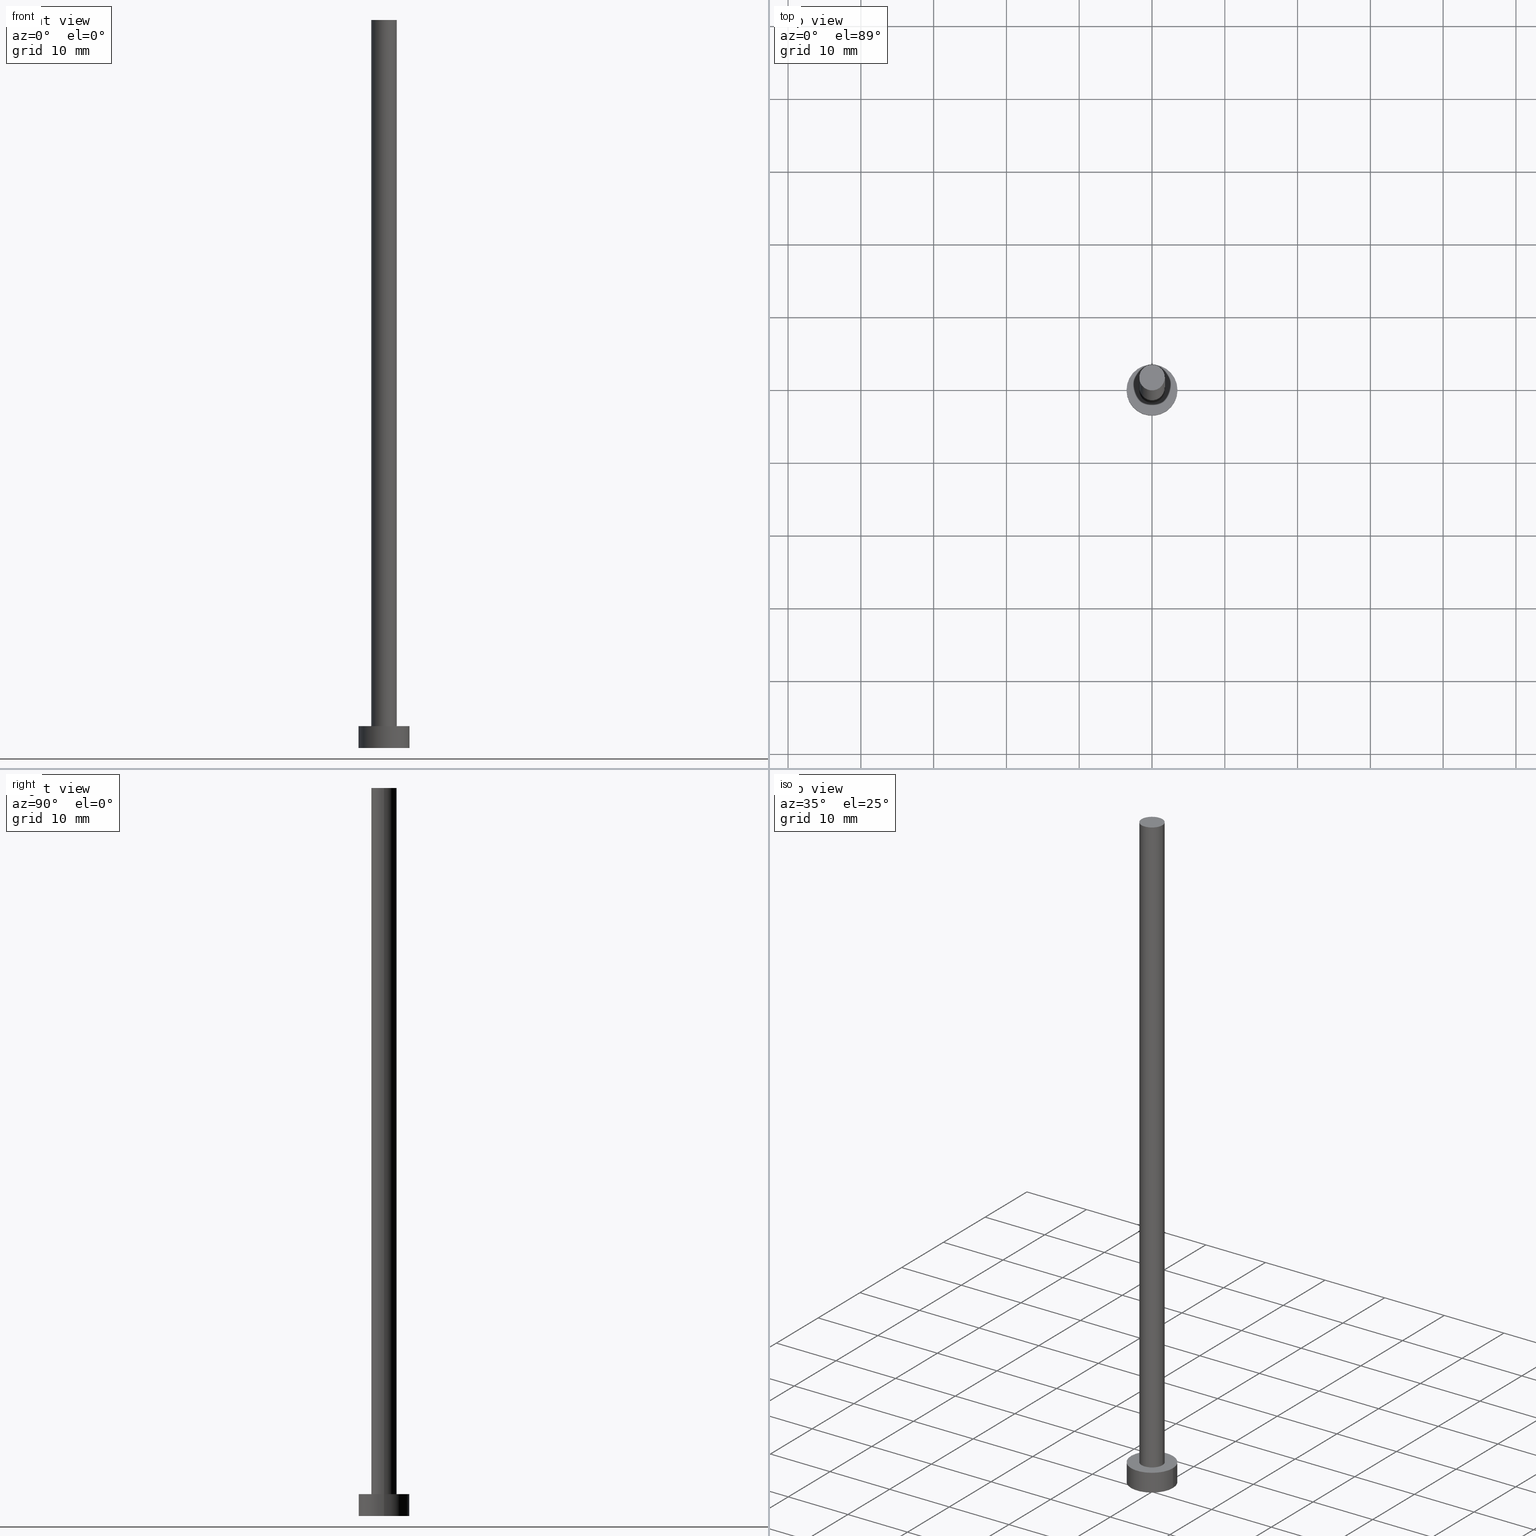
[diagram: canonical four-view strip — front | top / right | iso, engineering-drawing reading convention]
A machine part, canonical four-view strip (front | top / right | iso — engineering-drawing reading convention). The complete STEP part file that produces these views, byte-faithful:
ISO-10303-21;
HEADER;
FILE_DESCRIPTION (( 'STEP AP203' ),
    '1' );
FILE_NAME ('755e.STEP',
    '2023-02-13T15:35:10',
    ( '' ),
    ( '' ),
    'SwSTEP 2.0',
    'SolidWorks 2019',
    '' );
FILE_SCHEMA (( 'CONFIG_CONTROL_DESIGN' ));
ENDSEC;

DATA;
#1 = ORIENTED_EDGE ( 'NONE', *, *, #54, .F. ) ;
#2 = AXIS2_PLACEMENT_3D ( 'NONE', #250, #79, #24 ) ;
#3 = FACE_BOUND ( 'NONE', #95, .T. ) ;
#4 = PLANE ( 'NONE',  #22 ) ;
#5 = CARTESIAN_POINT ( 'NONE',  ( 0.000000000000000000, 0.000000000000000000, 3.000000000000000000 ) ) ;
#6 = CIRCLE ( 'NONE', #126, 3.500000000000000444 ) ;
#7 = CC_DESIGN_APPROVAL ( #165, ( #131 ) ) ;
#8 = DIRECTION ( 'NONE',  ( 1.000000000000000000, 0.000000000000000000, 0.000000000000000000 ) ) ;
#9 = PERSON_AND_ORGANIZATION_ROLE ( 'creator' ) ;
#10 = DIRECTION ( 'NONE',  ( -1.000000000000000000, 0.000000000000000000, 0.000000000000000000 ) ) ;
#11 = EDGE_CURVE ( 'NONE', #30, #169, #98, .T. ) ;
#12 = COORDINATED_UNIVERSAL_TIME_OFFSET ( 1, 0, .AHEAD. ) ;
#13 = DIRECTION ( 'NONE',  ( -0.000000000000000000, -0.000000000000000000, -1.000000000000000000 ) ) ;
#14 = PERSON_AND_ORGANIZATION_ROLE ( 'design_supplier' ) ;
#15 = CYLINDRICAL_SURFACE ( 'NONE', #127, 3.500000000000000444 ) ;
#16 = EDGE_LOOP ( 'NONE', ( #94, #136, #194, #80 ) ) ;
#17 = PERSON_AND_ORGANIZATION ( #156, #177 ) ;
#18 = AXIS2_PLACEMENT_3D ( 'NONE', #187, #195, #186 ) ;
#19 = CALENDAR_DATE ( 2023, 13, 2 ) ;
#20 = CARTESIAN_POINT ( 'NONE',  ( 0.000000000000000000, 0.000000000000000000, 0.000000000000000000 ) ) ;
#21 = EDGE_CURVE ( 'NONE', #230, #169, #223, .T. ) ;
#22 = AXIS2_PLACEMENT_3D ( 'NONE', #86, #43, #119 ) ;
#23 = ORIENTED_EDGE ( 'NONE', *, *, #11, .T. ) ;
#24 = DIRECTION ( 'NONE',  ( -1.000000000000000000, 0.000000000000000000, 0.000000000000000000 ) ) ;
#25 = CIRCLE ( 'NONE', #97, 3.500000000000000444 ) ;
#26 = APPROVAL_PERSON_ORGANIZATION ( #171, #233, #205 ) ;
#27 = DIRECTION ( 'NONE',  ( 0.000000000000000000, 0.000000000000000000, 1.000000000000000000 ) ) ;
#28 = CARTESIAN_POINT ( 'NONE',  ( -3.500000000000000444, 0.000000000000000000, 3.000000000000000000 ) ) ;
#29 = CC_DESIGN_PERSON_AND_ORGANIZATION_ASSIGNMENT ( #32, #14, ( #131 ) ) ;
#30 = VERTEX_POINT ( 'NONE', #137 ) ;
#31 = AXIS2_PLACEMENT_3D ( 'NONE', #172, #243, #38 ) ;
#32 = PERSON_AND_ORGANIZATION ( #156, #177 ) ;
#33 =( NAMED_UNIT ( * ) SI_UNIT ( $, .STERADIAN. ) SOLID_ANGLE_UNIT ( ) );
#34 = AXIS2_PLACEMENT_3D ( 'NONE', #112, #113, #234 ) ;
#35 = CC_DESIGN_PERSON_AND_ORGANIZATION_ASSIGNMENT ( #189, #9, ( #131 ) ) ;
#36 = DIRECTION ( 'NONE',  ( -0.000000000000000000, -0.000000000000000000, -1.000000000000000000 ) ) ;
#37 = AXIS2_PLACEMENT_3D ( 'NONE', #237, #240, #188 ) ;
#38 = DIRECTION ( 'NONE',  ( 1.000000000000000000, 0.000000000000000000, 0.000000000000000000 ) ) ;
#39 = PLANE ( 'NONE',  #34 ) ;
#40 = AXIS2_PLACEMENT_3D ( 'NONE', #235, #65, #140 ) ;
#41 = CARTESIAN_POINT ( 'NONE',  ( 0.000000000000000000, 0.000000000000000000, 3.000000000000000000 ) ) ;
#42 = DIRECTION ( 'NONE',  ( 1.000000000000000000, 0.000000000000000000, 0.000000000000000000 ) ) ;
#43 = DIRECTION ( 'NONE',  ( 0.000000000000000000, 0.000000000000000000, 1.000000000000000000 ) ) ;
#44 = CARTESIAN_POINT ( 'NONE',  ( 3.500000000000000444, 4.286263797015737088E-16, 3.000000000000000000 ) ) ;
#45 = ORIENTED_EDGE ( 'NONE', *, *, #133, .F. ) ;
#46 = CARTESIAN_POINT ( 'NONE',  ( -1.750000000000000000, 0.000000000000000000, 3.000000000000000000 ) ) ;
#47 = VECTOR ( 'NONE', #166, 1000.000000000000000 ) ;
#48 = COORDINATED_UNIVERSAL_TIME_OFFSET ( 1, 0, .AHEAD. ) ;
#49 = ADVANCED_FACE ( 'NONE', ( #216 ), #220, .T. ) ;
#50 = CC_DESIGN_APPROVAL ( #233, ( #251 ) ) ;
#51 = CARTESIAN_POINT ( 'NONE',  ( 1.750000000000000000, 2.143131898507867804E-16, 3.000000000000000000 ) ) ;
#52 = APPROVAL_STATUS ( 'not_yet_approved' ) ;
#53 = EDGE_LOOP ( 'NONE', ( #102, #182, #23, #75 ) ) ;
#54 = EDGE_CURVE ( 'NONE', #118, #121, #6, .T. ) ;
#55 = CIRCLE ( 'NONE', #82, 3.500000000000000444 ) ;
#56 = LINE ( 'NONE', #116, #153 ) ;
#57 = CALENDAR_DATE ( 2023, 13, 2 ) ;
#58 = ORIENTED_EDGE ( 'NONE', *, *, #133, .T. ) ;
#59 = ORIENTED_EDGE ( 'NONE', *, *, #198, .F. ) ;
#60 = APPLICATION_PROTOCOL_DEFINITION ( 'international standard', 'config_control_design', 1994, #252 ) ;
#61 = APPROVAL_PERSON_ORGANIZATION ( #111, #207, #249 ) ;
#62 = DIRECTION ( 'NONE',  ( 0.000000000000000000, 0.000000000000000000, 1.000000000000000000 ) ) ;
#63 = LOCAL_TIME ( 16, 35, 10.00000000000000000, #12 ) ;
#64 = CC_DESIGN_PERSON_AND_ORGANIZATION_ASSIGNMENT ( #158, #210, ( #88 ) ) ;
#65 = DIRECTION ( 'NONE',  ( 0.000000000000000000, 0.000000000000000000, 1.000000000000000000 ) ) ;
#66 = CARTESIAN_POINT ( 'NONE',  ( 0.000000000000000000, 0.000000000000000000, 3.000000000000000000 ) ) ;
#67 = EDGE_CURVE ( 'NONE', #197, #230, #56, .T. ) ;
#68 = LINE ( 'NONE', #44, #72 ) ;
#69 = EDGE_LOOP ( 'NONE', ( #159, #214 ) ) ;
#70 = CARTESIAN_POINT ( 'NONE',  ( -3.500000000000000444, 0.000000000000000000, 0.000000000000000000 ) ) ;
#71 = APPROVAL_DATE_TIME ( #108, #165 ) ;
#72 = VECTOR ( 'NONE', #167, 1000.000000000000000 ) ;
#73 = DIRECTION ( 'NONE',  ( -1.000000000000000000, 0.000000000000000000, 0.000000000000000000 ) ) ;
#74 = ORIENTED_EDGE ( 'NONE', *, *, #114, .F. ) ;
#75 = ORIENTED_EDGE ( 'NONE', *, *, #198, .T. ) ;
#76 = COORDINATED_UNIVERSAL_TIME_OFFSET ( 1, 0, .AHEAD. ) ;
#77 = VERTEX_POINT ( 'NONE', #218 ) ;
#78 = DATE_AND_TIME ( #19, #63 ) ;
#79 = DIRECTION ( 'NONE',  ( -0.000000000000000000, -0.000000000000000000, -1.000000000000000000 ) ) ;
#80 = ORIENTED_EDGE ( 'NONE', *, *, #11, .F. ) ;
#81 = DATE_AND_TIME ( #117, #246 ) ;
#82 = AXIS2_PLACEMENT_3D ( 'NONE', #5, #200, #8 ) ;
#83 = DIRECTION ( 'NONE',  ( 1.000000000000000000, 0.000000000000000000, 0.000000000000000000 ) ) ;
#84 = FACE_OUTER_BOUND ( 'NONE', #69, .T. ) ;
#85 = CC_DESIGN_PERSON_AND_ORGANIZATION_ASSIGNMENT ( #155, #122, ( #251 ) ) ;
#86 = CARTESIAN_POINT ( 'NONE',  ( 0.000000000000000000, 0.000000000000000000, 100.0000000000000000 ) ) ;
#87 = AXIS2_PLACEMENT_3D ( 'NONE', #89, #241, #10 ) ;
#88 = PRODUCT_DEFINITION ( 'NEZN�M�', '', #131, #105 ) ;
#89 = CARTESIAN_POINT ( 'NONE',  ( 0.000000000000000000, 0.000000000000000000, 3.000000000000000000 ) ) ;
#90 = CYLINDRICAL_SURFACE ( 'NONE', #87, 3.500000000000000444 ) ;
#91 = CALENDAR_DATE ( 2023, 13, 2 ) ;
#92 = SECURITY_CLASSIFICATION_LEVEL ( 'unclassified' ) ;
#93 = CC_DESIGN_APPROVAL ( #207, ( #88 ) ) ;
#94 = ORIENTED_EDGE ( 'NONE', *, *, #176, .F. ) ;
#95 = EDGE_LOOP ( 'NONE', ( #59, #229 ) ) ;
#96 = EDGE_LOOP ( 'NONE', ( #184, #181 ) ) ;
#97 = AXIS2_PLACEMENT_3D ( 'NONE', #168, #27, #224 ) ;
#98 = LINE ( 'NONE', #132, #47 ) ;
#99 = CARTESIAN_POINT ( 'NONE',  ( 1.750000000000000000, 2.143131898507867804E-16, 100.0000000000000000 ) ) ;
#100 = EDGE_CURVE ( 'NONE', #30, #197, #143, .T. ) ;
#101 = DIRECTION ( 'NONE',  ( 0.000000000000000000, 0.000000000000000000, 1.000000000000000000 ) ) ;
#102 = ORIENTED_EDGE ( 'NONE', *, *, #67, .F. ) ;
#103 = DATE_TIME_ROLE ( 'classification_date' ) ;
#104 = DIRECTION ( 'NONE',  ( 1.000000000000000000, 0.000000000000000000, 0.000000000000000000 ) ) ;
#105 = DESIGN_CONTEXT ( 'detailed design', #252, 'design' ) ;
#106 = CC_DESIGN_DATE_AND_TIME_ASSIGNMENT ( #149, #103, ( #251 ) ) ;
#107 =( NAMED_UNIT ( * ) PLANE_ANGLE_UNIT ( ) SI_UNIT ( $, .RADIAN. ) );
#108 = DATE_AND_TIME ( #204, #115 ) ;
#109 = PRODUCT_DEFINITION_SHAPE ( 'NONE', 'NONE',  #88 ) ;
#110 = DIRECTION ( 'NONE',  ( -0.000000000000000000, -0.000000000000000000, -1.000000000000000000 ) ) ;
#111 = PERSON_AND_ORGANIZATION ( #156, #177 ) ;
#112 = CARTESIAN_POINT ( 'NONE',  ( 0.000000000000000000, 0.000000000000000000, 0.000000000000000000 ) ) ;
#113 = DIRECTION ( 'NONE',  ( 0.000000000000000000, 0.000000000000000000, 1.000000000000000000 ) ) ;
#114 = EDGE_CURVE ( 'NONE', #77, #190, #231, .T. ) ;
#115 = LOCAL_TIME ( 16, 35, 10.00000000000000000, #48 ) ;
#116 = CARTESIAN_POINT ( 'NONE',  ( 1.750000000000000000, 2.143131898507867804E-16, 100.0000000000000000 ) ) ;
#117 = CALENDAR_DATE ( 2023, 13, 2 ) ;
#118 = VERTEX_POINT ( 'NONE', #255 ) ;
#119 = DIRECTION ( 'NONE',  ( 1.000000000000000000, 0.000000000000000000, -0.000000000000000000 ) ) ;
#120 = PRODUCT_RELATED_PRODUCT_CATEGORY ( 'detail', '', ( #129 ) ) ;
#121 = VERTEX_POINT ( 'NONE', #162 ) ;
#122 = PERSON_AND_ORGANIZATION_ROLE ( 'classification_officer' ) ;
#123 = CARTESIAN_POINT ( 'NONE',  ( 0.000000000000000000, 0.000000000000000000, 100.0000000000000000 ) ) ;
#124 = CLOSED_SHELL ( 'NONE', ( #221, #227, #161, #211, #125, #49, #193 ) ) ;
#125 = ADVANCED_FACE ( 'NONE', ( #213 ), #39, .F. ) ;
#126 = AXIS2_PLACEMENT_3D ( 'NONE', #41, #62, #42 ) ;
#127 = AXIS2_PLACEMENT_3D ( 'NONE', #244, #36, #73 ) ;
#128 = SHAPE_DEFINITION_REPRESENTATION ( #109, #183 ) ;
#129 = PRODUCT ( '755e', '755e', '', ( #215 ) ) ;
#130 = PERSON_AND_ORGANIZATION_ROLE ( 'design_owner' ) ;
#131 = PRODUCT_DEFINITION_FORMATION_WITH_SPECIFIED_SOURCE ( 'LIBOVOLN�', '', #129, .NOT_KNOWN. ) ;
#132 = CARTESIAN_POINT ( 'NONE',  ( -1.750000000000000000, 0.000000000000000000, 100.0000000000000000 ) ) ;
#133 = EDGE_CURVE ( 'NONE', #121, #77, #68, .T. ) ;
#134 = EDGE_LOOP ( 'NONE', ( #45, #1, #247, #236 ) ) ;
#135 = APPROVAL_DATE_TIME ( #78, #233 ) ;
#136 = ORIENTED_EDGE ( 'NONE', *, *, #67, .T. ) ;
#137 = CARTESIAN_POINT ( 'NONE',  ( -1.750000000000000000, 0.000000000000000000, 100.0000000000000000 ) ) ;
#138 = EDGE_CURVE ( 'NONE', #121, #118, #55, .T. ) ;
#139 = DATE_TIME_ROLE ( 'creation_date' ) ;
#140 = DIRECTION ( 'NONE',  ( 1.000000000000000000, 0.000000000000000000, 0.000000000000000000 ) ) ;
#141 = PERSON_AND_ORGANIZATION ( #156, #177 ) ;
#142 = DIRECTION ( 'NONE',  ( 0.000000000000000000, 0.000000000000000000, 1.000000000000000000 ) ) ;
#143 = CIRCLE ( 'NONE', #18, 1.750000000000000000 ) ;
#144 = PLANE ( 'NONE',  #239 ) ;
#145 = FACE_OUTER_BOUND ( 'NONE', #134, .T. ) ;
#146 = APPROVAL_STATUS ( 'not_yet_approved' ) ;
#147 = FACE_OUTER_BOUND ( 'NONE', #96, .T. ) ;
#148 = CIRCLE ( 'NONE', #245, 1.750000000000000000 ) ;
#149 = DATE_AND_TIME ( #91, #154 ) ;
#150 = EDGE_CURVE ( 'NONE', #190, #77, #25, .T. ) ;
#151 = FACE_OUTER_BOUND ( 'NONE', #219, .T. ) ;
#152 = DIRECTION ( 'NONE',  ( -0.000000000000000000, -0.000000000000000000, -1.000000000000000000 ) ) ;
#153 = VECTOR ( 'NONE', #110, 1000.000000000000000 ) ;
#154 = LOCAL_TIME ( 16, 35, 10.00000000000000000, #201 ) ;
#155 = PERSON_AND_ORGANIZATION ( #156, #177 ) ;
#156 = PERSON ( 'NEUR�EN�', 'NEUR�EN�', 'NEUR�EN�', ('NEUR�EN�'), ('NEUR�EN�'), ('NEUR�EN�') ) ;
#157 = FACE_OUTER_BOUND ( 'NONE', #16, .T. ) ;
#158 = PERSON_AND_ORGANIZATION ( #156, #177 ) ;
#159 = ORIENTED_EDGE ( 'NONE', *, *, #54, .T. ) ;
#160 = ORIENTED_EDGE ( 'NONE', *, *, #217, .F. ) ;
#161 = ADVANCED_FACE ( 'NONE', ( #145 ), #90, .T. ) ;
#162 = CARTESIAN_POINT ( 'NONE',  ( 3.500000000000000444, 4.286263797015737088E-16, 3.000000000000000000 ) ) ;
#163 = DIRECTION ( 'NONE',  ( 0.000000000000000000, 0.000000000000000000, 1.000000000000000000 ) ) ;
#164 = EDGE_LOOP ( 'NONE', ( #253, #74 ) ) ;
#165 = APPROVAL ( #146, 'NEUR�EN�' ) ;
#166 = DIRECTION ( 'NONE',  ( -0.000000000000000000, -0.000000000000000000, -1.000000000000000000 ) ) ;
#167 = DIRECTION ( 'NONE',  ( -0.000000000000000000, -0.000000000000000000, -1.000000000000000000 ) ) ;
#168 = CARTESIAN_POINT ( 'NONE',  ( 0.000000000000000000, 0.000000000000000000, 0.000000000000000000 ) ) ;
#169 = VERTEX_POINT ( 'NONE', #46 ) ;
#170 = UNCERTAINTY_MEASURE_WITH_UNIT (LENGTH_MEASURE( 1.000000000000000082E-05 ), #191, 'distance_accuracy_value', 'NONE');
#171 = PERSON_AND_ORGANIZATION ( #156, #177 ) ;
#172 = CARTESIAN_POINT ( 'NONE',  ( 0.000000000000000000, 0.000000000000000000, 0.000000000000000000 ) ) ;
#173 = CYLINDRICAL_SURFACE ( 'NONE', #212, 1.750000000000000000 ) ;
#174 =( GEOMETRIC_REPRESENTATION_CONTEXT ( 3 ) GLOBAL_UNCERTAINTY_ASSIGNED_CONTEXT ( ( #170 ) ) GLOBAL_UNIT_ASSIGNED_CONTEXT ( ( #191, #107, #33 ) ) REPRESENTATION_CONTEXT ( 'NONE', 'WORKASPACE' ) );
#175 = CC_DESIGN_SECURITY_CLASSIFICATION ( #251, ( #131 ) ) ;
#176 = EDGE_CURVE ( 'NONE', #197, #30, #148, .T. ) ;
#177 = ORGANIZATION ( 'NEUR�EN�', 'NEUR�EN�', '' ) ;
#178 = CARTESIAN_POINT ( 'NONE',  ( 0.000000000000000000, 0.000000000000000000, 100.0000000000000000 ) ) ;
#179 = ORIENTED_EDGE ( 'NONE', *, *, #138, .F. ) ;
#180 = CC_DESIGN_PERSON_AND_ORGANIZATION_ASSIGNMENT ( #17, #130, ( #129 ) ) ;
#181 = ORIENTED_EDGE ( 'NONE', *, *, #176, .T. ) ;
#182 = ORIENTED_EDGE ( 'NONE', *, *, #100, .F. ) ;
#183 = ADVANCED_BREP_SHAPE_REPRESENTATION ( '755e', ( #225, #31 ), #174 ) ;
#184 = ORIENTED_EDGE ( 'NONE', *, *, #100, .T. ) ;
#185 = APPROVAL_STATUS ( 'not_yet_approved' ) ;
#186 = DIRECTION ( 'NONE',  ( 1.000000000000000000, 0.000000000000000000, 0.000000000000000000 ) ) ;
#187 = CARTESIAN_POINT ( 'NONE',  ( 0.000000000000000000, 0.000000000000000000, 100.0000000000000000 ) ) ;
#188 = DIRECTION ( 'NONE',  ( 1.000000000000000000, 0.000000000000000000, 0.000000000000000000 ) ) ;
#189 = PERSON_AND_ORGANIZATION ( #156, #177 ) ;
#190 = VERTEX_POINT ( 'NONE', #70 ) ;
#191 =( LENGTH_UNIT ( ) NAMED_UNIT ( * ) SI_UNIT ( .MILLI., .METRE. ) );
#192 = AXIS2_PLACEMENT_3D ( 'NONE', #20, #163, #83 ) ;
#193 = ADVANCED_FACE ( 'NONE', ( #147 ), #4, .T. ) ;
#194 = ORIENTED_EDGE ( 'NONE', *, *, #21, .T. ) ;
#195 = DIRECTION ( 'NONE',  ( 0.000000000000000000, 0.000000000000000000, 1.000000000000000000 ) ) ;
#196 = CC_DESIGN_DATE_AND_TIME_ASSIGNMENT ( #81, #139, ( #88 ) ) ;
#197 = VERTEX_POINT ( 'NONE', #99 ) ;
#198 = EDGE_CURVE ( 'NONE', #169, #230, #206, .T. ) ;
#199 = LINE ( 'NONE', #28, #226 ) ;
#200 = DIRECTION ( 'NONE',  ( 0.000000000000000000, 0.000000000000000000, 1.000000000000000000 ) ) ;
#201 = COORDINATED_UNIVERSAL_TIME_OFFSET ( 1, 0, .AHEAD. ) ;
#202 = LOCAL_TIME ( 16, 35, 10.00000000000000000, #232 ) ;
#203 = APPROVAL_PERSON_ORGANIZATION ( #141, #165, #208 ) ;
#204 = CALENDAR_DATE ( 2023, 13, 2 ) ;
#205 = APPROVAL_ROLE ( '' ) ;
#206 = CIRCLE ( 'NONE', #37, 1.750000000000000000 ) ;
#207 = APPROVAL ( #185, 'NEUR�EN�' ) ;
#208 = APPROVAL_ROLE ( '' ) ;
#209 = ORIENTED_EDGE ( 'NONE', *, *, #114, .T. ) ;
#210 = PERSON_AND_ORGANIZATION_ROLE ( 'creator' ) ;
#211 = ADVANCED_FACE ( 'NONE', ( #3, #84 ), #144, .T. ) ;
#212 = AXIS2_PLACEMENT_3D ( 'NONE', #178, #13, #228 ) ;
#213 = FACE_OUTER_BOUND ( 'NONE', #164, .T. ) ;
#214 = ORIENTED_EDGE ( 'NONE', *, *, #138, .T. ) ;
#215 = MECHANICAL_CONTEXT ( 'NONE', #238, 'mechanical' ) ;
#216 = FACE_OUTER_BOUND ( 'NONE', #53, .T. ) ;
#217 = EDGE_CURVE ( 'NONE', #118, #190, #199, .T. ) ;
#218 = CARTESIAN_POINT ( 'NONE',  ( 3.500000000000000444, 4.286263797015737088E-16, 0.000000000000000000 ) ) ;
#219 = EDGE_LOOP ( 'NONE', ( #179, #58, #209, #160 ) ) ;
#220 = CYLINDRICAL_SURFACE ( 'NONE', #2, 1.750000000000000000 ) ;
#221 = ADVANCED_FACE ( 'NONE', ( #157 ), #173, .T. ) ;
#222 = DIRECTION ( 'NONE',  ( 1.000000000000000000, 0.000000000000000000, -0.000000000000000000 ) ) ;
#223 = CIRCLE ( 'NONE', #40, 1.750000000000000000 ) ;
#224 = DIRECTION ( 'NONE',  ( 1.000000000000000000, 0.000000000000000000, 0.000000000000000000 ) ) ;
#225 = MANIFOLD_SOLID_BREP ( 'P�idat vysunut�m3', #124 ) ;
#226 = VECTOR ( 'NONE', #152, 1000.000000000000000 ) ;
#227 = ADVANCED_FACE ( 'NONE', ( #151 ), #15, .T. ) ;
#228 = DIRECTION ( 'NONE',  ( -1.000000000000000000, 0.000000000000000000, 0.000000000000000000 ) ) ;
#229 = ORIENTED_EDGE ( 'NONE', *, *, #21, .F. ) ;
#230 = VERTEX_POINT ( 'NONE', #51 ) ;
#231 = CIRCLE ( 'NONE', #192, 3.500000000000000444 ) ;
#232 = COORDINATED_UNIVERSAL_TIME_OFFSET ( 1, 0, .AHEAD. ) ;
#233 = APPROVAL ( #52, 'NEUR�EN�' ) ;
#234 = DIRECTION ( 'NONE',  ( 1.000000000000000000, 0.000000000000000000, -0.000000000000000000 ) ) ;
#235 = CARTESIAN_POINT ( 'NONE',  ( 0.000000000000000000, 0.000000000000000000, 3.000000000000000000 ) ) ;
#236 = ORIENTED_EDGE ( 'NONE', *, *, #150, .T. ) ;
#237 = CARTESIAN_POINT ( 'NONE',  ( 0.000000000000000000, 0.000000000000000000, 3.000000000000000000 ) ) ;
#238 = APPLICATION_CONTEXT ( 'configuration controlled 3d designs of mechanical parts and assemblies' ) ;
#239 = AXIS2_PLACEMENT_3D ( 'NONE', #66, #142, #222 ) ;
#240 = DIRECTION ( 'NONE',  ( 0.000000000000000000, 0.000000000000000000, 1.000000000000000000 ) ) ;
#241 = DIRECTION ( 'NONE',  ( -0.000000000000000000, -0.000000000000000000, -1.000000000000000000 ) ) ;
#242 = APPLICATION_PROTOCOL_DEFINITION ( 'international standard', 'config_control_design', 1994, #238 ) ;
#243 = DIRECTION ( 'NONE',  ( 0.000000000000000000, 0.000000000000000000, 1.000000000000000000 ) ) ;
#244 = CARTESIAN_POINT ( 'NONE',  ( 0.000000000000000000, 0.000000000000000000, 3.000000000000000000 ) ) ;
#245 = AXIS2_PLACEMENT_3D ( 'NONE', #123, #101, #104 ) ;
#246 = LOCAL_TIME ( 16, 35, 10.00000000000000000, #76 ) ;
#247 = ORIENTED_EDGE ( 'NONE', *, *, #217, .T. ) ;
#248 = APPROVAL_DATE_TIME ( #254, #207 ) ;
#249 = APPROVAL_ROLE ( '' ) ;
#250 = CARTESIAN_POINT ( 'NONE',  ( 0.000000000000000000, 0.000000000000000000, 100.0000000000000000 ) ) ;
#251 = SECURITY_CLASSIFICATION ( '', '', #92 ) ;
#252 = APPLICATION_CONTEXT ( 'configuration controlled 3d designs of mechanical parts and assemblies' ) ;
#253 = ORIENTED_EDGE ( 'NONE', *, *, #150, .F. ) ;
#254 = DATE_AND_TIME ( #57, #202 ) ;
#255 = CARTESIAN_POINT ( 'NONE',  ( -3.500000000000000444, 0.000000000000000000, 3.000000000000000000 ) ) ;
ENDSEC;
END-ISO-10303-21;
